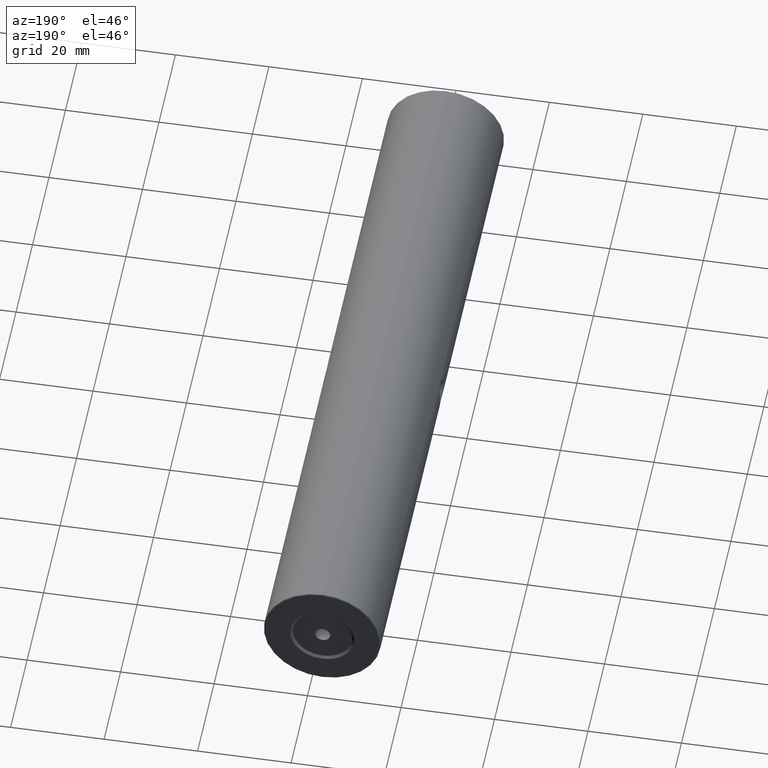
[diagram: clean part render]
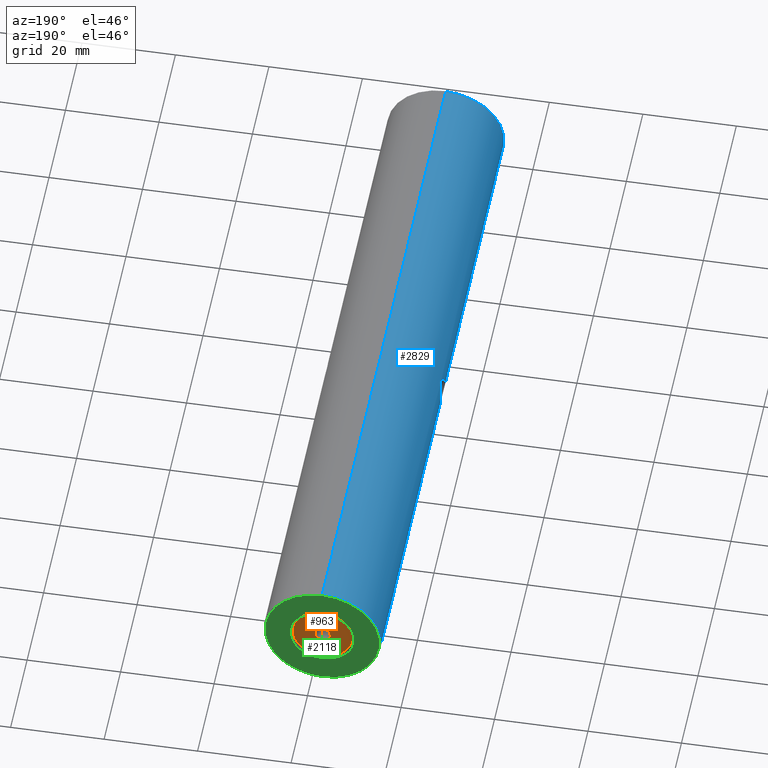
[diagram: same view with three faces highlighted in distinct colors, each labeled with its STEP entity id]
A machine part, auxiliary view with three faces highlighted in distinct colors.
Their STEP definitions:

[orange] entity #963 — the highlighted planar face has unit normal (0, 1, 0).
#179 = EDGE_LOOP ( 'NONE', ( #2880, #3137 ) ) ;
#252 = AXIS2_PLACEMENT_3D ( 'NONE', #1782, #3304, #1177 ) ;
#267 = VERTEX_POINT ( 'NONE', #2621 ) ;
#314 = DIRECTION ( 'NONE',  ( 0.0000000000000000000, 1.000000000000000000, 0.0000000000000000000 ) ) ;
#577 = DIRECTION ( 'NONE',  ( 0.0000000000000000000, 0.0000000000000000000, 1.000000000000000000 ) ) ;
#591 = AXIS2_PLACEMENT_3D ( 'NONE', #1830, #1270, #1563 ) ;
#848 = EDGE_CURVE ( 'NONE', #882, #267, #2837, .T. ) ;
#882 = VERTEX_POINT ( 'NONE', #1319 ) ;
#963 = ADVANCED_FACE ( 'NONE', ( #1507, #2362 ), #1079, .T. ) ;
#1079 = PLANE ( 'NONE',  #1862 ) ;
#1177 = DIRECTION ( 'NONE',  ( 0.0000000000000000000, 0.0000000000000000000, 1.000000000000000000 ) ) ;
#1254 = AXIS2_PLACEMENT_3D ( 'NONE', #2963, #314, #577 ) ;
#1270 = DIRECTION ( 'NONE',  ( 0.0000000000000000000, 1.000000000000000000, 0.0000000000000000000 ) ) ;
#1307 = ORIENTED_EDGE ( 'NONE', *, *, #3337, .F. ) ;
#1319 = CARTESIAN_POINT ( 'NONE',  ( -22.50520183104453409, 75.89825218476937607, 43.64999999999999858 ) ) ;
#1425 = CIRCLE ( 'NONE', #1254, 6.350000000000001421 ) ;
#1443 = VERTEX_POINT ( 'NONE', #3071 ) ;
#1507 = FACE_BOUND ( 'NONE', #1802, .T. ) ;
#1563 = DIRECTION ( 'NONE',  ( 0.0000000000000000000, 0.0000000000000000000, 1.000000000000000000 ) ) ;
#1665 = ORIENTED_EDGE ( 'NONE', *, *, #2182, .F. ) ;
#1782 = CARTESIAN_POINT ( 'NONE',  ( -22.50520183104453409, 75.89825218476937607, 50.00000000000000000 ) ) ;
#1802 = EDGE_LOOP ( 'NONE', ( #1307, #1665 ) ) ;
#1830 = CARTESIAN_POINT ( 'NONE',  ( -22.50520183104453409, 75.89825218476937607, 50.00000000000000000 ) ) ;
#1862 = AXIS2_PLACEMENT_3D ( 'NONE', #1937, #2149, #2658 ) ;
#1937 = CARTESIAN_POINT ( 'NONE',  ( -22.50520183104453409, 75.89825218476937607, 50.00000000000000000 ) ) ;
#2126 = DIRECTION ( 'NONE',  ( 0.0000000000000000000, 1.000000000000000000, 0.0000000000000000000 ) ) ;
#2149 = DIRECTION ( 'NONE',  ( 0.0000000000000000000, 1.000000000000000000, 0.0000000000000000000 ) ) ;
#2182 = EDGE_CURVE ( 'NONE', #3199, #1443, #2600, .T. ) ;
#2274 = AXIS2_PLACEMENT_3D ( 'NONE', #2906, #2126, #3251 ) ;
#2362 = FACE_OUTER_BOUND ( 'NONE', #179, .T. ) ;
#2553 = EDGE_CURVE ( 'NONE', #267, #882, #1425, .T. ) ;
#2591 = CARTESIAN_POINT ( 'NONE',  ( -22.50520183104453409, 75.89825218476937607, 48.35000000000000142 ) ) ;
#2600 = CIRCLE ( 'NONE', #252, 1.649999999999998579 ) ;
#2621 = CARTESIAN_POINT ( 'NONE',  ( -22.50520183104453409, 75.89825218476937607, 56.35000000000000142 ) ) ;
#2658 = DIRECTION ( 'NONE',  ( 0.0000000000000000000, -0.0000000000000000000, 1.000000000000000000 ) ) ;
#2837 = CIRCLE ( 'NONE', #2274, 6.350000000000001421 ) ;
#2880 = ORIENTED_EDGE ( 'NONE', *, *, #2553, .T. ) ;
#2906 = CARTESIAN_POINT ( 'NONE',  ( -22.50520183104453409, 75.89825218476937607, 50.00000000000000000 ) ) ;
#2963 = CARTESIAN_POINT ( 'NONE',  ( -22.50520183104453409, 75.89825218476937607, 50.00000000000000000 ) ) ;
#3071 = CARTESIAN_POINT ( 'NONE',  ( -22.50520183104453409, 75.89825218476937607, 51.64999999999999858 ) ) ;
#3137 = ORIENTED_EDGE ( 'NONE', *, *, #848, .T. ) ;
#3157 = CIRCLE ( 'NONE', #591, 1.649999999999998579 ) ;
#3199 = VERTEX_POINT ( 'NONE', #2591 ) ;
#3251 = DIRECTION ( 'NONE',  ( 0.0000000000000000000, 0.0000000000000000000, 1.000000000000000000 ) ) ;
#3304 = DIRECTION ( 'NONE',  ( 0.0000000000000000000, 1.000000000000000000, 0.0000000000000000000 ) ) ;
#3337 = EDGE_CURVE ( 'NONE', #1443, #3199, #3157, .T. ) ;

[blue] entity #2829 — the highlighted cylindrical surface (partial cylindrical patch) has radius 12.5 mm, axis along (-0, -1, -0).
#10 = CARTESIAN_POINT ( 'NONE',  ( -34.74815230531368115, -0.01157353944645581577, 47.47574332323320334 ) ) ;
#27 = CARTESIAN_POINT ( 'NONE',  ( -34.74847621066871284, 2.810539836582059081, 47.47735429480083980 ) ) ;
#41 = CARTESIAN_POINT ( 'NONE',  ( -35.00520147448047226, 4.209585013874989734, 50.00298564924417377 ) ) ;
#102 = CARTESIAN_POINT ( 'NONE',  ( -35.00520183104453764, -1.413082124769271530, 50.00000000000000000 ) ) ;
#133 = CARTESIAN_POINT ( 'NONE',  ( -22.50520183104453409, 76.14825218476937607, 62.50000000000000000 ) ) ;
#136 = DIRECTION ( 'NONE',  ( 0.0000000000000000000, 0.0000000000000000000, -1.000000000000000000 ) ) ;
#156 = CARTESIAN_POINT ( 'NONE',  ( -34.96325857829893380, -1.233718698007609804, 51.02694110184879150 ) ) ;
#221 = EDGE_LOOP ( 'NONE', ( #1066, #2381, #1538, #3342 ) ) ;
#263 = CARTESIAN_POINT ( 'NONE',  ( -34.98691299260828202, -1.339639162813659690, 49.23677669507346621 ) ) ;
#265 = ORIENTED_EDGE ( 'NONE', *, *, #1101, .T. ) ;
#280 = CARTESIAN_POINT ( 'NONE',  ( -34.66651604185519631, 1.768063399753225573, 47.10968654197456118 ) ) ;
#311 = CARTESIAN_POINT ( 'NONE',  ( -34.72889004346954067, 0.1521183056256285027, 47.38523661628913430 ) ) ;
#327 = CARTESIAN_POINT ( 'NONE',  ( -22.50520183104453409, -73.35174781523060972, 37.50000000000000711 ) ) ;
#352 = CARTESIAN_POINT ( 'NONE',  ( -34.67081540850386290, 1.856390161468167044, 52.87196965017535177 ) ) ;
#372 = CARTESIAN_POINT ( 'NONE',  ( -34.72924432496377989, 0.1489096346691486106, 52.61311078804221353 ) ) ;
#391 = CARTESIAN_POINT ( 'NONE',  ( -34.81267991287086971, -0.4618486554978188940, 52.18960616404257991 ) ) ;
#456 = CARTESIAN_POINT ( 'NONE',  ( -22.50520183104453409, 76.14825218476937607, 37.50000000000000711 ) ) ;
#461 = VERTEX_POINT ( 'NONE', #1501 ) ;
#483 = B_SPLINE_CURVE_WITH_KNOTS ( 'NONE', 3,
 ( #3335, #935, #618, #656, #1940, #1716, #1209, #673, #3090, #1998, #3074, #636, #877, #1695, #2794, #352, #2771, #3282, #1978, #1959, #2490, #3020, #1436, #372, #1171, #3354, #391, #2545, #1734, #2809, #2247, #156, #1455, #1417, #690, #3317, #2528, #102 ),
 .UNSPECIFIED., .F., .F.,
 ( 4, 2, 2, 2, 2, 2, 2, 2, 2, 2, 2, 2, 2, 2, 2, 2, 2, 2, 4 ),
 ( 0.5000000000000000000, 0.5624999999999982236, 0.5781249999999983347, 0.5937499999999984457, 0.6249999999999986677, 0.6562499999999987788, 0.6874999999999988898, 0.7187499999999991118, 0.7343749999999991118, 0.7499999999999991118, 0.7812499999999991118, 0.8124999999999991118, 0.8437499999999991118, 0.8749999999999991118, 0.9062499999999991118, 0.9374999999999991118, 0.9531249999999990008, 0.9687499999999988898, 1.000000000000000000 ),
 .UNSPECIFIED. ) ;
#489 = EDGE_CURVE ( 'NONE', #2931, #1799, #748, .T. ) ;
#530 = EDGE_LOOP ( 'NONE', ( #265, #1585 ) ) ;
#544 = CARTESIAN_POINT ( 'NONE',  ( -34.85689439159365577, -0.7179281710998723920, 48.07538743323030417 ) ) ;
#575 = EDGE_CURVE ( 'NONE', #1799, #2628, #3273, .T. ) ;
#618 = CARTESIAN_POINT ( 'NONE',  ( -34.98663707283992608, 4.134943201830848736, 50.76675213548183052 ) ) ;
#636 = CARTESIAN_POINT ( 'NONE',  ( -34.74801352654726827, 2.806830232060728125, 52.52488523745065407 ) ) ;
#656 = CARTESIAN_POINT ( 'NONE',  ( -34.94725856887959026, 3.958573559332277281, 51.20539725433906852 ) ) ;
#673 = CARTESIAN_POINT ( 'NONE',  ( -34.87912024511824427, 3.630988285928393289, 51.77802314557389707 ) ) ;
#675 = EDGE_CURVE ( 'NONE', #1523, #2931, #982, .T. ) ;
#690 = CARTESIAN_POINT ( 'NONE',  ( -34.98808031034839416, -1.341176413164886227, 50.66066995131212281 ) ) ;
#748 = LINE ( 'NONE', #2315, #1986 ) ;
#802 = CARTESIAN_POINT ( 'NONE',  ( -34.72905173132530621, 2.645954824989597221, 47.38598351054756108 ) ) ;
#817 = CARTESIAN_POINT ( 'NONE',  ( -34.97116716007710124, 4.065639543346119211, 49.06127516949057821 ) ) ;
#874 = CARTESIAN_POINT ( 'NONE',  ( -35.00086437887826207, 4.191749029155260153, 49.62049296360564199 ) ) ;
#877 = CARTESIAN_POINT ( 'NONE',  ( -34.72905683927812959, 2.646135917084930345, 52.61400507405517146 ) ) ;
#896 = CARTESIAN_POINT ( 'NONE',  ( -22.50520183104453409, 76.39825218476937607, 50.00000000000000000 ) ) ;
#935 = CARTESIAN_POINT ( 'NONE',  ( -35.00511057740323650, 4.209214405500886436, 50.38354389311073334 ) ) ;
#982 = CIRCLE ( 'NONE', #2831, 12.49999999999999645 ) ;
#1063 = CARTESIAN_POINT ( 'NONE',  ( -34.69688201949649198, 0.4909844491484823825, 47.23984144479320690 ) ) ;
#1066 = ORIENTED_EDGE ( 'NONE', *, *, #2286, .F. ) ;
#1101 = EDGE_CURVE ( 'NONE', #2865, #461, #2854, .T. ) ;
#1123 = CARTESIAN_POINT ( 'NONE',  ( -22.50520183104453409, 76.39825218476937607, 62.50000000000000000 ) ) ;
#1131 = CARTESIAN_POINT ( 'NONE',  ( -34.92056304548295032, -1.039858968404190120, 48.53915210865990559 ) ) ;
#1154 = FACE_BOUND ( 'NONE', #530, .T. ) ;
#1171 = CARTESIAN_POINT ( 'NONE',  ( -34.74827243123371545, -0.01252608434833267850, 52.52367520670845380 ) ) ;
#1209 = CARTESIAN_POINT ( 'NONE',  ( -34.91000489704503451, 3.784083020754031246, 51.54180631073816699 ) ) ;
#1299 = DIRECTION ( 'NONE',  ( 0.0000000000000000000, 0.0000000000000000000, 1.000000000000000000 ) ) ;
#1323 = CARTESIAN_POINT ( 'NONE',  ( -35.00520183104453764, -1.413082124769271530, 50.00000000000000000 ) ) ;
#1377 = CARTESIAN_POINT ( 'NONE',  ( -35.00524692301910079, 4.209770318062037830, 49.81270652731090820 ) ) ;
#1417 = CARTESIAN_POINT ( 'NONE',  ( -34.98275065808669382, -1.318488312173030197, 50.75447521944087725 ) ) ;
#1436 = CARTESIAN_POINT ( 'NONE',  ( -34.69719134326830101, 0.4871785544745585450, 52.75879586369698160 ) ) ;
#1455 = CARTESIAN_POINT ( 'NONE',  ( -34.97029888078465376, -1.264562310703723380, 50.93798354384917815 ) ) ;
#1489 = CYLINDRICAL_SURFACE ( 'NONE', #3056, 12.49999999999999645 ) ;
#1501 = CARTESIAN_POINT ( 'NONE',  ( -35.00520147448047226, 4.209585013874989734, 50.00298564924417377 ) ) ;
#1523 = VERTEX_POINT ( 'NONE', #133 ) ;
#1538 = ORIENTED_EDGE ( 'NONE', *, *, #489, .T. ) ;
#1585 = ORIENTED_EDGE ( 'NONE', *, *, #2811, .T. ) ;
#1618 = CARTESIAN_POINT ( 'NONE',  ( -34.93943696048886238, -1.127055212647336768, 48.70724999355458351 ) ) ;
#1635 = CARTESIAN_POINT ( 'NONE',  ( -34.87939741779931779, -0.8359134744099540049, 48.22389352026597464 ) ) ;
#1637 = CARTESIAN_POINT ( 'NONE',  ( -22.50520183104453409, -73.35174781523060972, 62.50000000000000000 ) ) ;
#1695 = CARTESIAN_POINT ( 'NONE',  ( -34.69672515564799653, 2.303875218912926570, 52.76087174913168099 ) ) ;
#1716 = CARTESIAN_POINT ( 'NONE',  ( -34.92002400583303512, 3.832124608313795644, 51.45923812921764551 ) ) ;
#1734 = CARTESIAN_POINT ( 'NONE',  ( -34.87963477420775149, -0.8371459404529352222, 51.77451349623726173 ) ) ;
#1799 = VERTEX_POINT ( 'NONE', #327 ) ;
#1864 = CARTESIAN_POINT ( 'NONE',  ( -34.98371482565009671, 4.119216514467694878, 49.24348063906649031 ) ) ;
#1912 = CARTESIAN_POINT ( 'NONE',  ( -34.68408990658787161, 0.6657967389230204924, 47.18465315096211299 ) ) ;
#1940 = CARTESIAN_POINT ( 'NONE',  ( -34.93867267745084604, 3.919447845729964630, 51.29073167658771837 ) ) ;
#1959 = CARTESIAN_POINT ( 'NONE',  ( -34.66195746431353086, 1.211812476573449260, 52.90917384922281030 ) ) ;
#1978 = CARTESIAN_POINT ( 'NONE',  ( -34.66191919043989600, 1.488437803987103569, 52.90933378057250991 ) ) ;
#1986 = VECTOR ( 'NONE', #2686, 1000.000000000000000 ) ;
#1998 = CARTESIAN_POINT ( 'NONE',  ( -34.81205133254193385, 3.254567286170596319, 52.19320050888284612 ) ) ;
#2204 = CARTESIAN_POINT ( 'NONE',  ( -34.66193446152058044, 1.214990703615521639, 47.09073003121877576 ) ) ;
#2210 = VECTOR ( 'NONE', #2951, 1000.000000000000000 ) ;
#2215 = LINE ( 'NONE', #1123, #2210 ) ;
#2227 = FACE_OUTER_BOUND ( 'NONE', #221, .T. ) ;
#2247 = CARTESIAN_POINT ( 'NONE',  ( -34.93964974344274310, -1.128013625739961778, 51.29060020601431802 ) ) ;
#2286 = EDGE_CURVE ( 'NONE', #1523, #2628, #2215, .T. ) ;
#2315 = CARTESIAN_POINT ( 'NONE',  ( -22.50520183104453409, 76.39825218476937607, 37.50000000000000711 ) ) ;
#2381 = ORIENTED_EDGE ( 'NONE', *, *, #675, .T. ) ;
#2395 = CARTESIAN_POINT ( 'NONE',  ( -34.66645419303030451, 1.029721679340576790, 47.10942330579264592 ) ) ;
#2411 = CARTESIAN_POINT ( 'NONE',  ( -35.00520183104454475, -1.413082089048403711, 49.61579498167221658 ) ) ;
#2422 = DIRECTION ( 'NONE',  ( 0.0000000000000000000, 1.000000000000000000, 0.0000000000000000000 ) ) ;
#2444 = DIRECTION ( 'NONE',  ( 0.0000000000000000000, 0.0000000000000000000, 1.000000000000000000 ) ) ;
#2448 = CARTESIAN_POINT ( 'NONE',  ( -34.81219287680124808, 3.255432286540682618, 47.80758469868609950 ) ) ;
#2489 = AXIS2_PLACEMENT_3D ( 'NONE', #2973, #2422, #2444 ) ;
#2490 = CARTESIAN_POINT ( 'NONE',  ( -34.66652474597412237, 1.028189448993670263, 52.89027716195608519 ) ) ;
#2528 = CARTESIAN_POINT ( 'NONE',  ( -35.00520183104454475, -1.413082142476721037, 50.19045706922843664 ) ) ;
#2545 = CARTESIAN_POINT ( 'NONE',  ( -34.85728882727386946, -0.7200549649968761567, 51.92206626468251329 ) ) ;
#2628 = VERTEX_POINT ( 'NONE', #1637 ) ;
#2686 = DIRECTION ( 'NONE',  ( -0.0000000000000000000, -1.000000000000000000, -0.0000000000000000000 ) ) ;
#2690 = CARTESIAN_POINT ( 'NONE',  ( -34.79001590681735223, -0.3182597614693935539, 47.68806332065445730 ) ) ;
#2707 = CARTESIAN_POINT ( 'NONE',  ( -34.81216474023067065, -0.4587072315104986364, 47.80748851897895690 ) ) ;
#2728 = CARTESIAN_POINT ( 'NONE',  ( -34.69691194385949018, 2.305978899467888699, 47.23996501529247638 ) ) ;
#2771 = CARTESIAN_POINT ( 'NONE',  ( -34.66752058121687696, 1.766213776380952893, 52.88584409472479564 ) ) ;
#2794 = CARTESIAN_POINT ( 'NONE',  ( -34.68386991631064831, 2.126930833339849780, 52.81629139459757027 ) ) ;
#2809 = CARTESIAN_POINT ( 'NONE',  ( -34.92091958337249480, -1.041568019920849020, 51.45788940173778769 ) ) ;
#2811 = EDGE_CURVE ( 'NONE', #461, #2865, #483, .T. ) ;
#2827 = CARTESIAN_POINT ( 'NONE',  ( -35.00520183104453764, -1.413082124769271530, 50.00000000000000000 ) ) ;
#2829 = ADVANCED_FACE ( 'NONE', ( #2227, #1154 ), #1489, .T. ) ;
#2831 = AXIS2_PLACEMENT_3D ( 'NONE', #2957, #3193, #1299 ) ;
#2854 = B_SPLINE_CURVE_WITH_KNOTS ( 'NONE', 3,
 ( #1323, #2411, #263, #1618, #1131, #1635, #544, #2707, #2690, #10, #311, #1063, #1912, #2395, #2204, #3197, #280, #3278, #2728, #802, #27, #2945, #2448, #3219, #3017, #817, #1864, #874, #1377, #41 ),
 .UNSPECIFIED., .F., .F.,
 ( 4, 2, 2, 2, 2, 2, 2, 2, 2, 2, 2, 2, 2, 2, 4 ),
 ( 0.0000000000000000000, 0.06250000000000002776, 0.09374999999999998612, 0.1249999999999999306, 0.1562499999999998612, 0.1874999999999998057, 0.2187499999999997502, 0.2499999999999997224, 0.2812499999999996669, 0.3124999999999996669, 0.3437499999999997224, 0.3749999999999997224, 0.4374999999999998335, 0.4687499999999999445, 0.5000000000000000000 ),
 .UNSPECIFIED. ) ;
#2865 = VERTEX_POINT ( 'NONE', #2827 ) ;
#2931 = VERTEX_POINT ( 'NONE', #456 ) ;
#2945 = CARTESIAN_POINT ( 'NONE',  ( -34.78997005406233711, 3.114338606112261765, 47.68786276457183249 ) ) ;
#2951 = DIRECTION ( 'NONE',  ( -0.0000000000000000000, -1.000000000000000000, -0.0000000000000000000 ) ) ;
#2957 = CARTESIAN_POINT ( 'NONE',  ( -22.50520183104453409, 76.14825218476937607, 50.00000000000000000 ) ) ;
#2973 = CARTESIAN_POINT ( 'NONE',  ( -22.50520183104453409, -73.35174781523060972, 50.00000000000000000 ) ) ;
#3017 = CARTESIAN_POINT ( 'NONE',  ( -34.92365520086107722, 3.852890852512078190, 48.53098690614426403 ) ) ;
#3020 = CARTESIAN_POINT ( 'NONE',  ( -34.68406788087127524, 0.6663276251777838777, 52.81543937148251899 ) ) ;
#3036 = DIRECTION ( 'NONE',  ( -0.0000000000000000000, -1.000000000000000000, -0.0000000000000000000 ) ) ;
#3056 = AXIS2_PLACEMENT_3D ( 'NONE', #896, #3036, #136 ) ;
#3074 = CARTESIAN_POINT ( 'NONE',  ( -34.78950233568574646, 3.111229001393587712, 52.31461547249361388 ) ) ;
#3090 = CARTESIAN_POINT ( 'NONE',  ( -34.85705643049905689, 3.515358686858431447, 51.92363226179140412 ) ) ;
#3193 = DIRECTION ( 'NONE',  ( -0.0000000000000000000, -1.000000000000000000, -0.0000000000000000000 ) ) ;
#3197 = CARTESIAN_POINT ( 'NONE',  ( -34.66192908598772249, 1.582225631722754766, 47.09070756900330679 ) ) ;
#3219 = CARTESIAN_POINT ( 'NONE',  ( -34.87974277260344991, 3.646729404573891387, 48.21237859132147463 ) ) ;
#3273 = CIRCLE ( 'NONE', #2489, 12.49999999999999645 ) ;
#3278 = CARTESIAN_POINT ( 'NONE',  ( -34.68404829437904624, 2.129844607696542269, 47.18447624015831821 ) ) ;
#3282 = CARTESIAN_POINT ( 'NONE',  ( -34.66304078550319900, 1.581811714229160115, 52.90465927043069883 ) ) ;
#3317 = CARTESIAN_POINT ( 'NONE',  ( -35.00080834475433278, -1.395005945047956608, 50.38049639823365311 ) ) ;
#3335 = CARTESIAN_POINT ( 'NONE',  ( -35.00520147448047226, 4.209585013874989734, 50.00298564924417377 ) ) ;
#3342 = ORIENTED_EDGE ( 'NONE', *, *, #575, .T. ) ;
#3354 = CARTESIAN_POINT ( 'NONE',  ( -34.79013651512040894, -0.3190703824788171383, 52.31129705536976360 ) ) ;

[green] entity #2118 — the highlighted planar face has unit normal (0, 1, 0).
#5 = DIRECTION ( 'NONE',  ( 0.0000000000000000000, 1.000000000000000000, 0.0000000000000000000 ) ) ;
#106 = FACE_OUTER_BOUND ( 'NONE', #772, .T. ) ;
#206 = DIRECTION ( 'NONE',  ( 0.0000000000000000000, 0.0000000000000000000, 1.000000000000000000 ) ) ;
#356 = DIRECTION ( 'NONE',  ( 0.0000000000000000000, -0.0000000000000000000, 1.000000000000000000 ) ) ;
#478 = ORIENTED_EDGE ( 'NONE', *, *, #774, .T. ) ;
#723 = FACE_BOUND ( 'NONE', #1568, .T. ) ;
#737 = PLANE ( 'NONE',  #3279 ) ;
#756 = AXIS2_PLACEMENT_3D ( 'NONE', #2348, #2866, #206 ) ;
#772 = EDGE_LOOP ( 'NONE', ( #958, #478 ) ) ;
#774 = EDGE_CURVE ( 'NONE', #2004, #1380, #1702, .T. ) ;
#958 = ORIENTED_EDGE ( 'NONE', *, *, #3200, .T. ) ;
#1110 = CARTESIAN_POINT ( 'NONE',  ( -22.50520183104453409, 76.39825218476937607, 50.00000000000000000 ) ) ;
#1311 = CIRCLE ( 'NONE', #2775, 6.850000000000022737 ) ;
#1380 = VERTEX_POINT ( 'NONE', #2767 ) ;
#1484 = AXIS2_PLACEMENT_3D ( 'NONE', #3117, #1503, #3432 ) ;
#1503 = DIRECTION ( 'NONE',  ( 0.0000000000000000000, 1.000000000000000000, 0.0000000000000000000 ) ) ;
#1519 = CARTESIAN_POINT ( 'NONE',  ( -22.50520183104453409, 76.39825218476937607, 37.75000000000000711 ) ) ;
#1568 = EDGE_LOOP ( 'NONE', ( #3407, #3108 ) ) ;
#1680 = DIRECTION ( 'NONE',  ( 0.0000000000000000000, 1.000000000000000000, 0.0000000000000000000 ) ) ;
#1702 = CIRCLE ( 'NONE', #1810, 12.24999999999999645 ) ;
#1758 = EDGE_CURVE ( 'NONE', #2717, #2898, #1311, .T. ) ;
#1797 = CARTESIAN_POINT ( 'NONE',  ( -22.50520183104453409, 76.39825218476937607, 50.00000000000000000 ) ) ;
#1810 = AXIS2_PLACEMENT_3D ( 'NONE', #1110, #5, #3447 ) ;
#1812 = CIRCLE ( 'NONE', #1484, 12.24999999999999645 ) ;
#1934 = DIRECTION ( 'NONE',  ( -0.0000000000000000000, -1.000000000000000000, -0.0000000000000000000 ) ) ;
#2004 = VERTEX_POINT ( 'NONE', #1519 ) ;
#2016 = CARTESIAN_POINT ( 'NONE',  ( -22.50520183104453409, 76.39825218476937607, 43.14999999999997726 ) ) ;
#2118 = ADVANCED_FACE ( 'NONE', ( #106, #723 ), #737, .T. ) ;
#2150 = CIRCLE ( 'NONE', #756, 6.850000000000022737 ) ;
#2348 = CARTESIAN_POINT ( 'NONE',  ( -22.50520183104453409, 76.39825218476937607, 50.00000000000000000 ) ) ;
#2408 = DIRECTION ( 'NONE',  ( 0.0000000000000000000, 0.0000000000000000000, 1.000000000000000000 ) ) ;
#2436 = EDGE_CURVE ( 'NONE', #2898, #2717, #2150, .T. ) ;
#2717 = VERTEX_POINT ( 'NONE', #3300 ) ;
#2767 = CARTESIAN_POINT ( 'NONE',  ( -22.50520183104453409, 76.39825218476937607, 62.25000000000000000 ) ) ;
#2775 = AXIS2_PLACEMENT_3D ( 'NONE', #2992, #1934, #2408 ) ;
#2866 = DIRECTION ( 'NONE',  ( -0.0000000000000000000, -1.000000000000000000, -0.0000000000000000000 ) ) ;
#2898 = VERTEX_POINT ( 'NONE', #2016 ) ;
#2992 = CARTESIAN_POINT ( 'NONE',  ( -22.50520183104453409, 76.39825218476937607, 50.00000000000000000 ) ) ;
#3108 = ORIENTED_EDGE ( 'NONE', *, *, #2436, .T. ) ;
#3117 = CARTESIAN_POINT ( 'NONE',  ( -22.50520183104453409, 76.39825218476937607, 50.00000000000000000 ) ) ;
#3200 = EDGE_CURVE ( 'NONE', #1380, #2004, #1812, .T. ) ;
#3279 = AXIS2_PLACEMENT_3D ( 'NONE', #1797, #1680, #356 ) ;
#3300 = CARTESIAN_POINT ( 'NONE',  ( -22.50520183104453409, 76.39825218476937607, 56.85000000000002274 ) ) ;
#3407 = ORIENTED_EDGE ( 'NONE', *, *, #1758, .T. ) ;
#3432 = DIRECTION ( 'NONE',  ( 0.0000000000000000000, 0.0000000000000000000, 1.000000000000000000 ) ) ;
#3447 = DIRECTION ( 'NONE',  ( 0.0000000000000000000, 0.0000000000000000000, 1.000000000000000000 ) ) ;